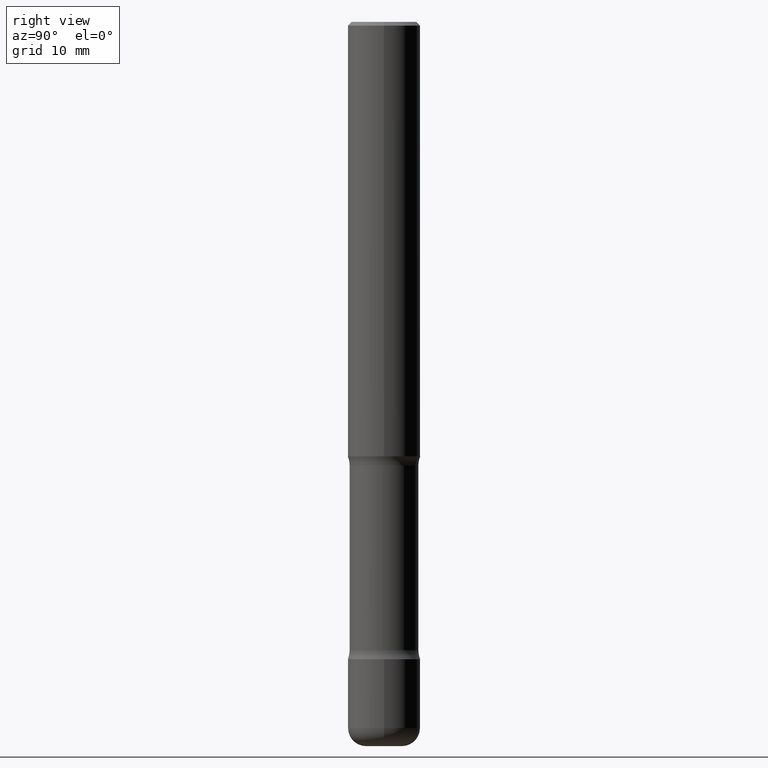
[diagram: clean part render]
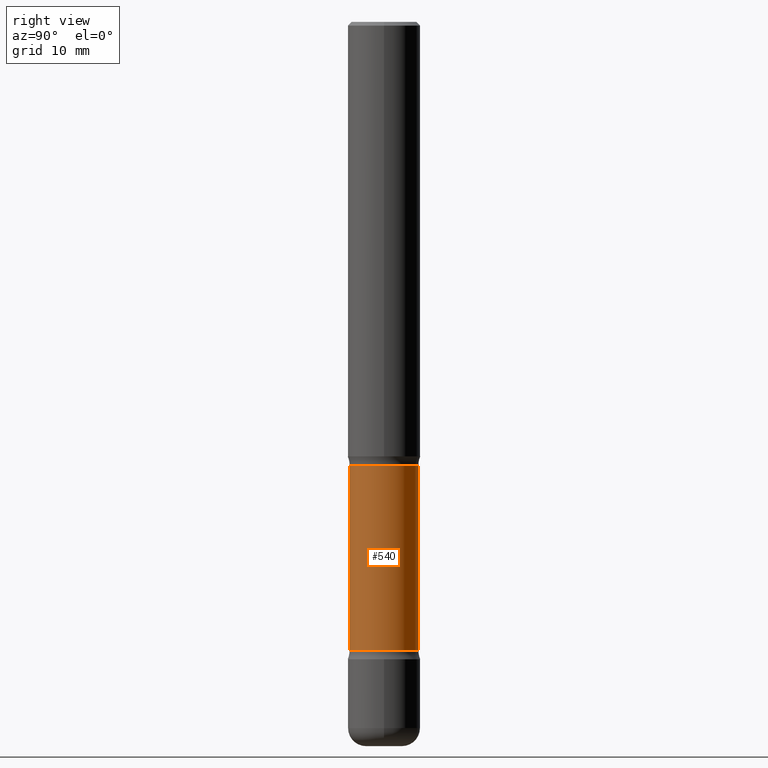
[diagram: same view with one face highlighted and labeled with its STEP entity id]
A machine part, right view. The second image highlights one B-rep face of the part: STEP entity #540.
In plain terms, the highlighted cylindrical surface (edge-blend (fillet) strip) has radius 4.7498 mm, axis along (0, -0, -1).
Its self-contained STEP definition (entity closure, byte-faithful):
#5 = EDGE_CURVE ( 'NONE', #428, #130, #383, .T. ) ;
#6 = CARTESIAN_POINT ( 'NONE',  ( 1.305814020727415620E-15, 0.1869999999999880924, -3.415963825191532521 ) ) ;
#15 = CARTESIAN_POINT ( 'NONE',  ( 1.305814020727390377E-15, 0.1869999999999915341, -2.410836174808471455 ) ) ;
#17 = ORIENTED_EDGE ( 'NONE', *, *, #312, .F. ) ;
#22 = CARTESIAN_POINT ( 'NONE',  ( -1.316701078222246809E-15, -0.1870000000000088813, -2.410836174808470567 ) ) ;
#27 = DIRECTION ( 'NONE',  ( 6.982962677686266711E-15, 1.000000000000000000, -2.921762560068729017E-15 ) ) ;
#117 = DIRECTION ( 'NONE',  ( 2.620889282446383185E-29, -3.240269232523581650E-15, -1.000000000000000000 ) ) ;
#121 = ORIENTED_EDGE ( 'NONE', *, *, #238, .F. ) ;
#122 = CARTESIAN_POINT ( 'NONE',  ( 8.345101196614320923E-29, -1.193899194573644426E-14, -3.415963825191531633 ) ) ;
#124 = DIRECTION ( 'NONE',  ( 6.982962677686266711E-15, 1.000000000000000000, -2.921762560068729806E-15 ) ) ;
#130 = VERTEX_POINT ( 'NONE', #22 ) ;
#165 = VERTEX_POINT ( 'NONE', #451 ) ;
#181 = EDGE_LOOP ( 'NONE', ( #559, #221, #17, #121 ) ) ;
#185 = AXIS2_PLACEMENT_3D ( 'NONE', #122, #507, #124 ) ;
#190 = DIRECTION ( 'NONE',  ( 2.620889282446383185E-29, -3.240269232523582044E-15, -1.000000000000000000 ) ) ;
#210 = CARTESIAN_POINT ( 'NONE',  ( 9.710679322936699330E-29, -1.362728943200010467E-14, -3.937000000000001165 ) ) ;
#221 = ORIENTED_EDGE ( 'NONE', *, *, #505, .T. ) ;
#229 = DIRECTION ( 'NONE',  ( 2.620889282446383185E-29, -3.240269232523581650E-15, -1.000000000000000000 ) ) ;
#238 = EDGE_CURVE ( 'NONE', #428, #475, #526, .T. ) ;
#246 = CARTESIAN_POINT ( 'NONE',  ( -1.282913125583180022E-15, -0.1870000000000137386, -3.937000000000000721 ) ) ;
#258 = VECTOR ( 'NONE', #190, 39.37007874015748143 ) ;
#312 = EDGE_CURVE ( 'NONE', #475, #165, #533, .T. ) ;
#320 = CARTESIAN_POINT ( 'NONE',  ( 1.305814020727429623E-15, 0.1869999999999864826, -3.937000000000001609 ) ) ;
#351 = CARTESIAN_POINT ( 'NONE',  ( 5.710772910234841729E-29, -8.682107745441492905E-15, -2.410836174808471011 ) ) ;
#369 = DIRECTION ( 'NONE',  ( 2.620889282446383185E-29, -3.240269232523582044E-15, -1.000000000000000000 ) ) ;
#377 = CYLINDRICAL_SURFACE ( 'NONE', #553, 0.1870000000000001106 ) ;
#383 = CIRCLE ( 'NONE', #423, 0.1870000000000002216 ) ;
#423 = AXIS2_PLACEMENT_3D ( 'NONE', #351, #229, #516 ) ;
#424 = VECTOR ( 'NONE', #369, 39.37007874015748143 ) ;
#428 = VERTEX_POINT ( 'NONE', #15 ) ;
#446 = LINE ( 'NONE', #246, #424 ) ;
#451 = CARTESIAN_POINT ( 'NONE',  ( -1.316701078222217030E-15, -0.1870000000000119900, -3.415963825191531189 ) ) ;
#475 = VERTEX_POINT ( 'NONE', #6 ) ;
#505 = EDGE_CURVE ( 'NONE', #130, #165, #446, .T. ) ;
#507 = DIRECTION ( 'NONE',  ( 2.620889282446383185E-29, -3.240269232523581650E-15, -1.000000000000000000 ) ) ;
#516 = DIRECTION ( 'NONE',  ( 6.982962677686266711E-15, 1.000000000000000000, -2.921762560068727439E-15 ) ) ;
#526 = LINE ( 'NONE', #320, #258 ) ;
#533 = CIRCLE ( 'NONE', #185, 0.1870000000000000551 ) ;
#540 = ADVANCED_FACE ( 'NONE', ( #550 ), #377, .T. ) ;
#550 = FACE_OUTER_BOUND ( 'NONE', #181, .T. ) ;
#553 = AXIS2_PLACEMENT_3D ( 'NONE', #210, #117, #27 ) ;
#559 = ORIENTED_EDGE ( 'NONE', *, *, #5, .T. ) ;